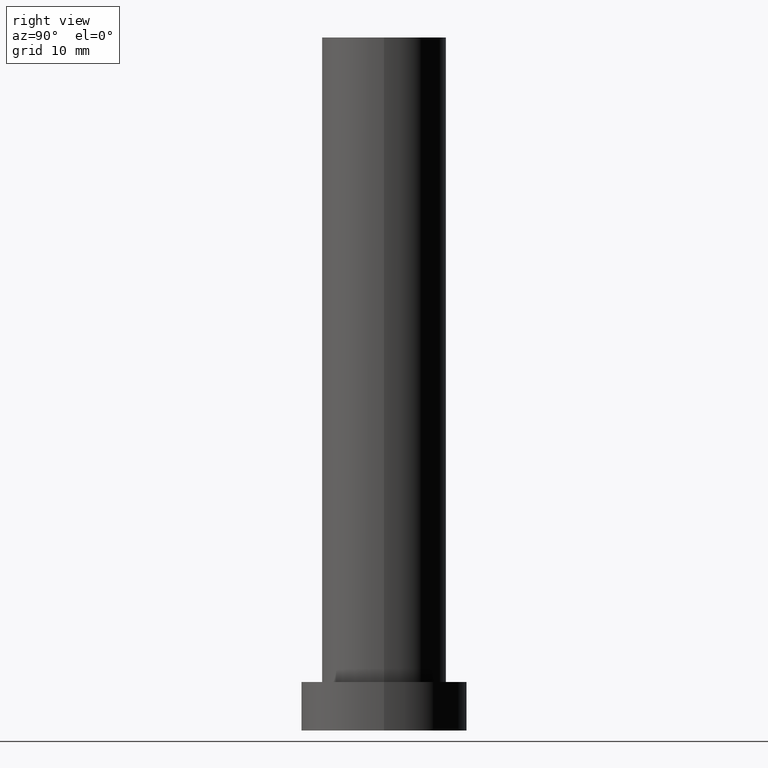
[diagram: clean part render]
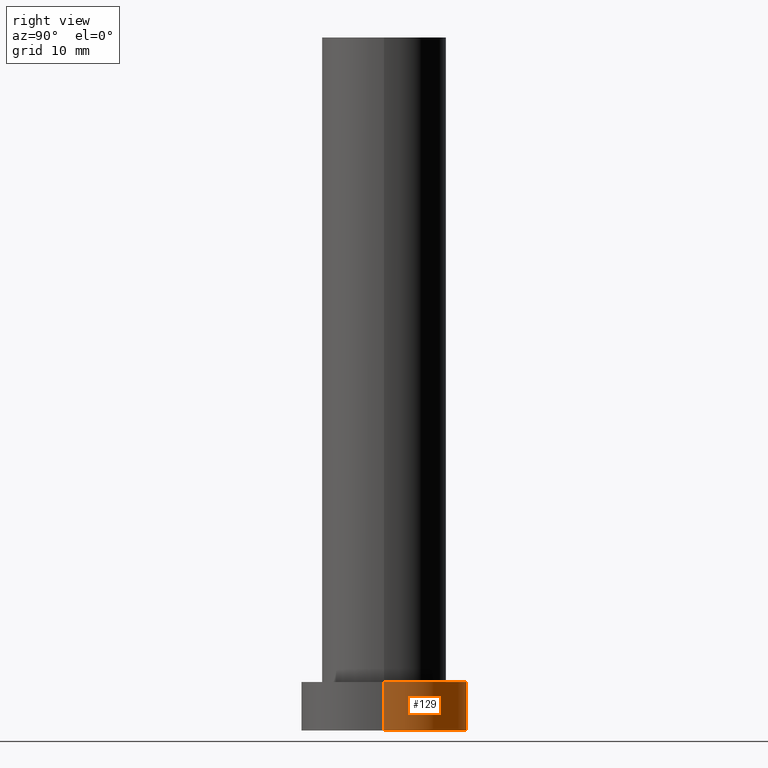
[diagram: same view with one face highlighted and labeled with its STEP entity id]
A machine part, right view. The second image highlights one B-rep face of the part: STEP entity #129.
In plain terms, the highlighted cylindrical surface (partial cylindrical patch) has radius 12 mm, axis along (-0, -0, -1).
Its self-contained STEP definition (entity closure, byte-faithful):
#3 = CARTESIAN_POINT ( 'NONE',  ( 0.000000000000000000, 0.000000000000000000, 0.000000000000000000 ) ) ;
#8 = CARTESIAN_POINT ( 'NONE',  ( 0.000000000000000000, 0.000000000000000000, 7.000000000000000000 ) ) ;
#12 = DIRECTION ( 'NONE',  ( 0.000000000000000000, 0.000000000000000000, 1.000000000000000000 ) ) ;
#15 = ORIENTED_EDGE ( 'NONE', *, *, #227, .T. ) ;
#23 = VERTEX_POINT ( 'NONE', #215 ) ;
#27 = DIRECTION ( 'NONE',  ( 1.000000000000000000, 0.000000000000000000, 0.000000000000000000 ) ) ;
#29 = CARTESIAN_POINT ( 'NONE',  ( -12.00000000000000178, 0.000000000000000000, 0.000000000000000000 ) ) ;
#37 = EDGE_CURVE ( 'NONE', #23, #85, #112, .T. ) ;
#40 = ORIENTED_EDGE ( 'NONE', *, *, #37, .T. ) ;
#41 = EDGE_LOOP ( 'NONE', ( #138, #15, #40, #116 ) ) ;
#49 = DIRECTION ( 'NONE',  ( 1.000000000000000000, 0.000000000000000000, 0.000000000000000000 ) ) ;
#53 = CARTESIAN_POINT ( 'NONE',  ( -12.00000000000000178, 0.000000000000000000, 7.000000000000000000 ) ) ;
#57 = VECTOR ( 'NONE', #208, 1000.000000000000000 ) ;
#66 = AXIS2_PLACEMENT_3D ( 'NONE', #3, #121, #27 ) ;
#68 = VECTOR ( 'NONE', #75, 1000.000000000000000 ) ;
#72 = EDGE_CURVE ( 'NONE', #155, #217, #247, .T. ) ;
#75 = DIRECTION ( 'NONE',  ( -0.000000000000000000, -0.000000000000000000, -1.000000000000000000 ) ) ;
#85 = VERTEX_POINT ( 'NONE', #29 ) ;
#91 = DIRECTION ( 'NONE',  ( -1.000000000000000000, 0.000000000000000000, 0.000000000000000000 ) ) ;
#104 = LINE ( 'NONE', #53, #68 ) ;
#112 = CIRCLE ( 'NONE', #66, 12.00000000000000178 ) ;
#116 = ORIENTED_EDGE ( 'NONE', *, *, #244, .F. ) ;
#117 = AXIS2_PLACEMENT_3D ( 'NONE', #8, #164, #91 ) ;
#121 = DIRECTION ( 'NONE',  ( 0.000000000000000000, 0.000000000000000000, 1.000000000000000000 ) ) ;
#126 = FACE_OUTER_BOUND ( 'NONE', #41, .T. ) ;
#129 = ADVANCED_FACE ( 'NONE', ( #126 ), #245, .T. ) ;
#138 = ORIENTED_EDGE ( 'NONE', *, *, #72, .F. ) ;
#155 = VERTEX_POINT ( 'NONE', #165 ) ;
#164 = DIRECTION ( 'NONE',  ( -0.000000000000000000, -0.000000000000000000, -1.000000000000000000 ) ) ;
#165 = CARTESIAN_POINT ( 'NONE',  ( 12.00000000000000178, 1.469576158976824144E-15, 7.000000000000000000 ) ) ;
#169 = CARTESIAN_POINT ( 'NONE',  ( 12.00000000000000178, 1.469576158976824144E-15, 7.000000000000000000 ) ) ;
#180 = CARTESIAN_POINT ( 'NONE',  ( 0.000000000000000000, 0.000000000000000000, 7.000000000000000000 ) ) ;
#184 = LINE ( 'NONE', #169, #57 ) ;
#203 = CARTESIAN_POINT ( 'NONE',  ( -12.00000000000000178, 0.000000000000000000, 7.000000000000000000 ) ) ;
#208 = DIRECTION ( 'NONE',  ( -0.000000000000000000, -0.000000000000000000, -1.000000000000000000 ) ) ;
#215 = CARTESIAN_POINT ( 'NONE',  ( 12.00000000000000178, 1.469576158976824144E-15, 0.000000000000000000 ) ) ;
#216 = AXIS2_PLACEMENT_3D ( 'NONE', #180, #12, #49 ) ;
#217 = VERTEX_POINT ( 'NONE', #203 ) ;
#227 = EDGE_CURVE ( 'NONE', #155, #23, #184, .T. ) ;
#244 = EDGE_CURVE ( 'NONE', #217, #85, #104, .T. ) ;
#245 = CYLINDRICAL_SURFACE ( 'NONE', #117, 12.00000000000000178 ) ;
#247 = CIRCLE ( 'NONE', #216, 12.00000000000000178 ) ;